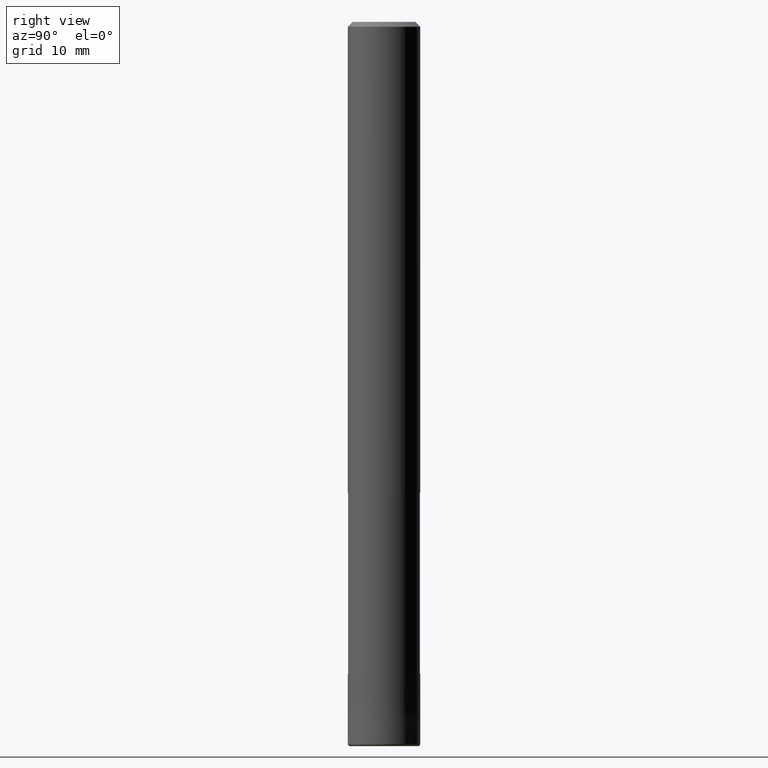
[diagram: clean part render]
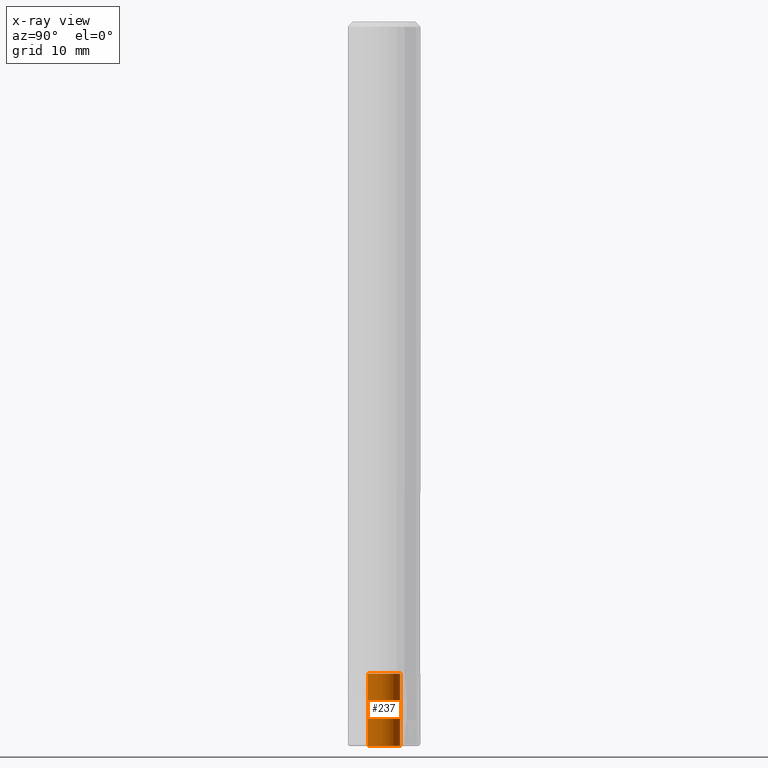
[diagram: x-ray — body ghosted, one internal face saturated and labeled with its STEP entity id]
A machine part, right view, then the same camera in x-ray: the body is ghosted and one INTERNAL B-rep face — a face not visible from any outside direction — is saturated and labeled: STEP entity #237.
In plain terms, the highlighted cylindrical surface (edge-blend (fillet) strip) has radius 1.35 mm, axis along (-0, -0, 1).
Its self-contained STEP definition (entity closure, byte-faithful):
#163=VERTEX_POINT('',#356);
#209=EDGE_CURVE('',#227,#255,#411,.T.);
#217=EDGE_CURVE('',#163,#227,#419,.T.);
#227=VERTEX_POINT('',#430);
#237=ADVANCED_FACE('',(#442),#443,.F.);
#255=VERTEX_POINT('',#463);
#259=EDGE_CURVE('',#283,#255,#467,.T.);
#273=EDGE_CURVE('',#283,#163,#482,.T.);
#283=VERTEX_POINT('',#494);
#356=CARTESIAN_POINT('',(0.0,1.35,-60.0));
#411=LINE('',#639,#640);
#419=CIRCLE('',#653,1.35);
#430=CARTESIAN_POINT('',(1.65321857766021E-016,-1.35,-60.0));
#442=FACE_OUTER_BOUND('',#679,.T.);
#443=CYLINDRICAL_SURFACE('',#680,1.35);
#463=CARTESIAN_POINT('',(1.65321857766021E-016,-1.35,-54.0));
#467=CIRCLE('',#714,1.35);
#482=LINE('',#731,#732);
#494=CARTESIAN_POINT('',(0.0,1.35,-54.0));
#639=CARTESIAN_POINT('',(1.65321857766021E-016,-1.35,-57.0));
#640=VECTOR('',#891,1.0);
#653=AXIS2_PLACEMENT_3D('',#899,#900,#901);
#679=EDGE_LOOP('',(#928,#929,#930,#931));
#680=AXIS2_PLACEMENT_3D('',#932,#933,#934);
#714=AXIS2_PLACEMENT_3D('',#963,#964,#965);
#731=CARTESIAN_POINT('',(-1.65321857766021E-016,1.35,-57.0));
#732=VECTOR('',#977,1.0);
#891=DIRECTION('',(0.0,-0.0,1.0));
#899=CARTESIAN_POINT('',(0.0,0.0,-60.0));
#900=DIRECTION('',(0.0,0.0,-1.0));
#901=DIRECTION('',(0.0,1.0,0.0));
#928=ORIENTED_EDGE('',*,*,#273,.T.);
#929=ORIENTED_EDGE('',*,*,#217,.T.);
#930=ORIENTED_EDGE('',*,*,#209,.T.);
#931=ORIENTED_EDGE('',*,*,#259,.F.);
#932=CARTESIAN_POINT('',(0.0,0.0,-57.0));
#933=DIRECTION('',(-0.0,-0.0,1.0));
#934=DIRECTION('',(0.0,1.0,0.0));
#963=CARTESIAN_POINT('',(0.0,0.0,-54.0));
#964=DIRECTION('',(0.0,0.0,-1.0));
#965=DIRECTION('',(0.0,1.0,0.0));
#977=DIRECTION('',(0.0,-0.0,-1.0));